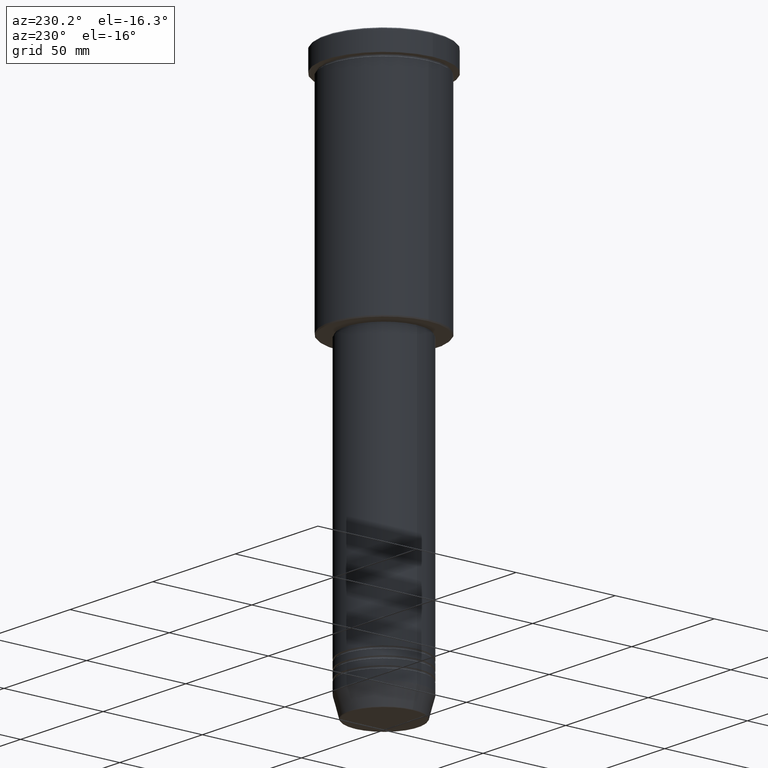
[diagram: clean part render]
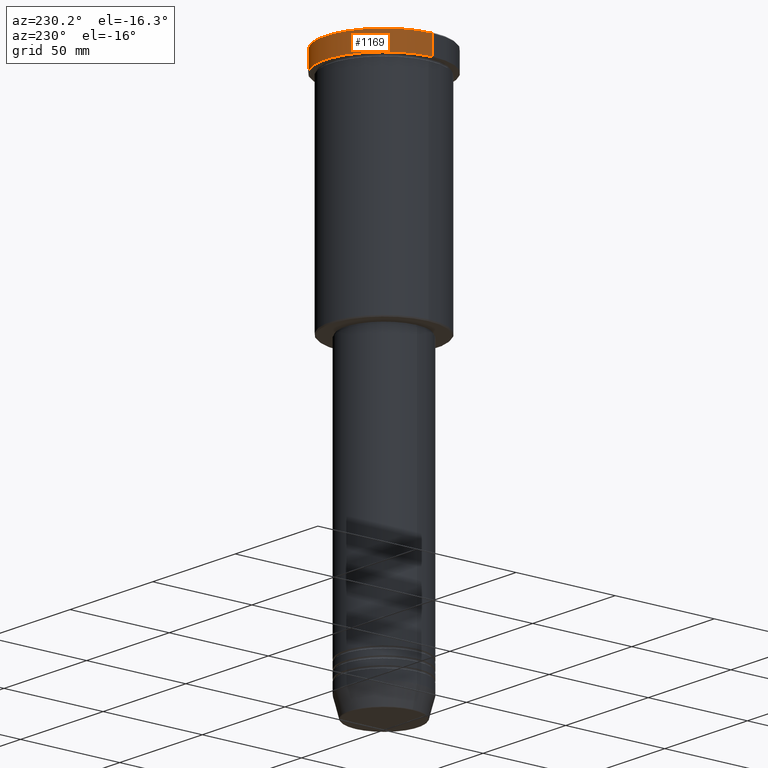
[diagram: same view with one face highlighted and labeled with its STEP entity id]
A machine part, auxiliary view. The second image highlights one B-rep face of the part: STEP entity #1169.
In plain terms, the highlighted cylindrical surface (partial cylindrical patch) has radius 29.5 mm, axis along (-0, -0, 1).
Its self-contained STEP definition (entity closure, byte-faithful):
#18 = VERTEX_POINT ( 'NONE', #1129 ) ;
#19 = AXIS2_PLACEMENT_3D ( 'NONE', #65, #1001, #913 ) ;
#26 = EDGE_CURVE ( 'NONE', #1123, #18, #595, .T. ) ;
#55 = CIRCLE ( 'NONE', #871, 29.50000000000000000 ) ;
#65 = CARTESIAN_POINT ( 'NONE',  ( 0.000000000000000000, 0.000000000000000000, 0.000000000000000000 ) ) ;
#139 = EDGE_CURVE ( 'NONE', #527, #925, #956, .T. ) ;
#155 = ORIENTED_EDGE ( 'NONE', *, *, #627, .T. ) ;
#228 = CARTESIAN_POINT ( 'NONE',  ( 29.50000000000000000, 0.000000000000000000, -9.999999999999992895 ) ) ;
#250 = CARTESIAN_POINT ( 'NONE',  ( 0.000000000000000000, 0.000000000000000000, -9.999999999999992895 ) ) ;
#273 = AXIS2_PLACEMENT_3D ( 'NONE', #250, #343, #991 ) ;
#324 = CARTESIAN_POINT ( 'NONE',  ( 0.000000000000000000, 0.000000000000000000, -0.5000000000000281997 ) ) ;
#332 = CARTESIAN_POINT ( 'NONE',  ( -29.50000000000000000, 3.612708057484691604E-15, 0.000000000000000000 ) ) ;
#343 = DIRECTION ( 'NONE',  ( -0.000000000000000000, -0.000000000000000000, 1.000000000000000000 ) ) ;
#359 = CARTESIAN_POINT ( 'NONE',  ( 29.50000000000000000, 0.000000000000000000, 0.000000000000000000 ) ) ;
#415 = DIRECTION ( 'NONE',  ( 1.000000000000000000, 0.000000000000000000, 0.000000000000000000 ) ) ;
#527 = VERTEX_POINT ( 'NONE', #228 ) ;
#588 = DIRECTION ( 'NONE',  ( 0.000000000000000000, 0.000000000000000000, -1.000000000000000000 ) ) ;
#595 = LINE ( 'NONE', #332, #1055 ) ;
#599 = ORIENTED_EDGE ( 'NONE', *, *, #26, .T. ) ;
#627 = EDGE_CURVE ( 'NONE', #527, #1123, #1042, .T. ) ;
#666 = VECTOR ( 'NONE', #886, 1000.000000000000000 ) ;
#700 = ORIENTED_EDGE ( 'NONE', *, *, #915, .T. ) ;
#776 = CARTESIAN_POINT ( 'NONE',  ( 29.50000000000000000, 0.000000000000000000, -0.5000000000000281997 ) ) ;
#825 = EDGE_LOOP ( 'NONE', ( #155, #599, #700, #916 ) ) ;
#864 = DIRECTION ( 'NONE',  ( -0.000000000000000000, -0.000000000000000000, 1.000000000000000000 ) ) ;
#871 = AXIS2_PLACEMENT_3D ( 'NONE', #324, #588, #415 ) ;
#878 = FACE_OUTER_BOUND ( 'NONE', #825, .T. ) ;
#886 = DIRECTION ( 'NONE',  ( -0.000000000000000000, -0.000000000000000000, 1.000000000000000000 ) ) ;
#904 = CARTESIAN_POINT ( 'NONE',  ( -29.50000000000000000, 3.612708057484691604E-15, -9.999999999999992895 ) ) ;
#913 = DIRECTION ( 'NONE',  ( 1.000000000000000000, 0.000000000000000000, 0.000000000000000000 ) ) ;
#915 = EDGE_CURVE ( 'NONE', #18, #925, #55, .T. ) ;
#916 = ORIENTED_EDGE ( 'NONE', *, *, #139, .F. ) ;
#925 = VERTEX_POINT ( 'NONE', #776 ) ;
#956 = LINE ( 'NONE', #359, #666 ) ;
#991 = DIRECTION ( 'NONE',  ( 1.000000000000000000, 0.000000000000000000, 0.000000000000000000 ) ) ;
#1001 = DIRECTION ( 'NONE',  ( -0.000000000000000000, -0.000000000000000000, 1.000000000000000000 ) ) ;
#1042 = CIRCLE ( 'NONE', #273, 29.50000000000000000 ) ;
#1055 = VECTOR ( 'NONE', #864, 1000.000000000000000 ) ;
#1090 = CYLINDRICAL_SURFACE ( 'NONE', #19, 29.50000000000000000 ) ;
#1123 = VERTEX_POINT ( 'NONE', #904 ) ;
#1129 = CARTESIAN_POINT ( 'NONE',  ( -29.50000000000000000, 3.612708057484691604E-15, -0.5000000000000281997 ) ) ;
#1169 = ADVANCED_FACE ( 'NONE', ( #878 ), #1090, .T. ) ;